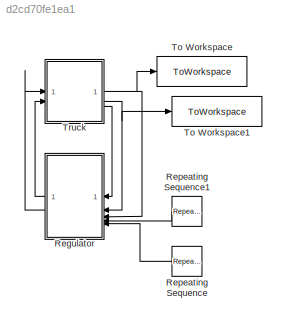
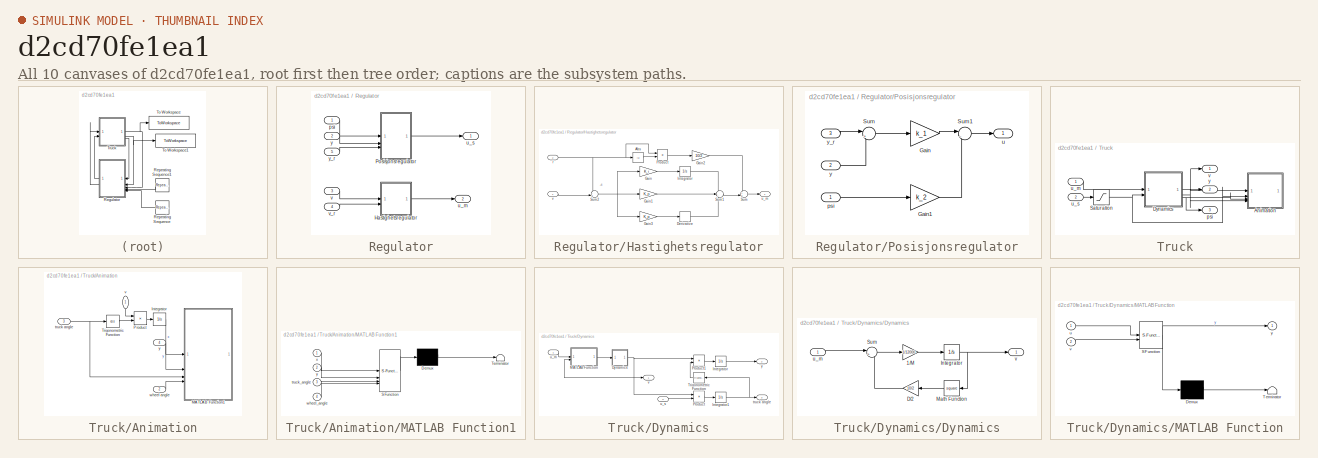
[diagram: thumbnail index - all 10 canvases of the model, root first then tree order]
MODEL slx_d2cd70fe1ea1
KIND model
CONFIG AbsTol = auto
CONFIG EnableMultiTasking = off
CONFIG FixedStep = auto
CONFIG MaxStep = 0.01
CONFIG MinStep = auto
CONFIG RelTol = 1e-3
CONFIG SampleTimeConstraint = Unconstrained
CONFIG SolverName = VariableStepAuto
CONFIG StartTime = 0.0
CONFIG StopTime = 80
BLOCK [SubSystem] Regulator
  NameLocation = top
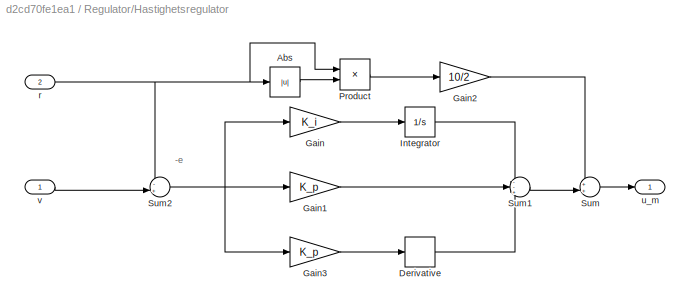
BLOCK [SubSystem] Regulator/Hastighetsregulator
BLOCK [Abs] Regulator/Hastighetsregulator/Abs
  SaturateOnIntegerOverflow = off
BLOCK [Derivative] Regulator/Hastighetsregulator/Derivative
BLOCK [Gain] Regulator/Hastighetsregulator/Gain
  Gain = K_i
BLOCK [Gain] Regulator/Hastighetsregulator/Gain1
  Gain = K_p
BLOCK [Gain] Regulator/Hastighetsregulator/Gain2
  Gain = 10/2
BLOCK [Gain] Regulator/Hastighetsregulator/Gain3
  Gain = K_p
BLOCK [Integrator] Regulator/Hastighetsregulator/Integrator
BLOCK [Product] Regulator/Hastighetsregulator/Product
BLOCK [Sum] Regulator/Hastighetsregulator/Sum
  Inputs = ++|
BLOCK [Sum] Regulator/Hastighetsregulator/Sum1
  Inputs = --+
BLOCK [Sum] Regulator/Hastighetsregulator/Sum2
  Inputs = -+|
BLOCK [Inport] Regulator/Hastighetsregulator/r
  Port = 2
BLOCK [Outport] Regulator/Hastighetsregulator/u_m
BLOCK [Inport] Regulator/Hastighetsregulator/v
BLOCK [SubSystem] Regulator/Posisjonsregulator
BLOCK [Gain] Regulator/Posisjonsregulator/Gain
  Gain = k_1
BLOCK [Gain] Regulator/Posisjonsregulator/Gain1
  Gain = k_2
BLOCK [Sum] Regulator/Posisjonsregulator/Sum
  Inputs = |+-
BLOCK [Sum] Regulator/Posisjonsregulator/Sum1
  Inputs = |--
BLOCK [Inport] Regulator/Posisjonsregulator/psi
BLOCK [Outport] Regulator/Posisjonsregulator/u
BLOCK [Inport] Regulator/Posisjonsregulator/y
  Port = 2
BLOCK [Inport] Regulator/Posisjonsregulator/y_r
  Port = 3
BLOCK [Inport] Regulator/psi
BLOCK [Outport] Regulator/u_m
  Port = 2
BLOCK [Outport] Regulator/u_s
BLOCK [Inport] Regulator/v
  Port = 3
BLOCK [Inport] Regulator/v_r
  Port = 4
BLOCK [Inport] Regulator/y
  Port = 2
BLOCK [Inport] Regulator/y_r
  Port = 5
BLOCK [Reference] Repeating Sequence  REF=simulink/Sources/Repeating
Sequence
  NameLocation = top
  SourceBlock = simulink/Sources/Repeating\nSequence
  SourceType = Repeating table
BLOCK [Reference] Repeating Sequence1  REF=simulink/Sources/Repeating
Sequence
  NameLocation = top
  SourceBlock = simulink/Sources/Repeating\nSequence
  SourceType = Repeating table
BLOCK [ToWorkspace] To Workspace
  FixptAsFi = on
  MaxDataPoints = inf
  SampleTime = 0.1
  Save2DSignal = 2-D array (concatenate along first dimension)
  VariableName = v
BLOCK [ToWorkspace] To Workspace1
  FixptAsFi = on
  MaxDataPoints = inf
  SampleTime = 0.1
  Save2DSignal = 2-D array (concatenate along first dimension)
  VariableName = y
BLOCK [SubSystem] Truck
BLOCK [SubSystem] Truck/Animation
BLOCK [Integrator] Truck/Animation/Integrator
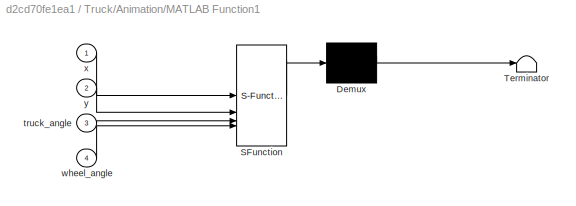
BLOCK [SubSystem] Truck/Animation/MATLAB Function1
  ErrorFcn = Stateflow.Translate.translate
  PermitHierarchicalResolution = ExplicitOnly
  SFBlockType = MATLAB Function
  SystemSampleTime = 1/30
  TreatAsAtomicUnit = on
BLOCK [Demux] Truck/Animation/MATLAB Function1/ Demux 
  Outputs = 1
BLOCK [S-Function] Truck/Animation/MATLAB Function1/ SFunction 
  EnableBusSupport = on
  FunctionName = sf_sfun
  PortCounts = [4 1]
  SFcnIsStateOwnerBlock = off
  SFunctionDeploymentMode = off
  Tag = Stateflow S-Function 3
BLOCK [Terminator] Truck/Animation/MATLAB Function1/ Terminator 
BLOCK [Inport] Truck/Animation/MATLAB Function1/truck_angle
  Port = 3
BLOCK [Inport] Truck/Animation/MATLAB Function1/wheel_angle
  Port = 4
BLOCK [Inport] Truck/Animation/MATLAB Function1/x
BLOCK [Inport] Truck/Animation/MATLAB Function1/y
  Port = 2
BLOCK [Product] Truck/Animation/Product
BLOCK [Trigonometry] Truck/Animation/Trigonometric Function
  Operator = cos
BLOCK [Inport] Truck/Animation/truck angle
  Port = 3
BLOCK [Inport] Truck/Animation/v
  NameLocation = left
BLOCK [Inport] Truck/Animation/wheel angle
  Port = 2
BLOCK [Inport] Truck/Animation/y
  Port = 4
BLOCK [SubSystem] Truck/Dynamics
  ClipboardFcn = parameters_truck.m
BLOCK [SubSystem] Truck/Dynamics/Dynamics
  ClipboardFcn = parameters_truck.m
BLOCK [Gain] Truck/Dynamics/Dynamics/1//M
  Gain = 1/12000
BLOCK [Gain] Truck/Dynamics/Dynamics/D//2
  Gain = 10/2
  NameLocation = top
BLOCK [Integrator] Truck/Dynamics/Dynamics/Integrator
BLOCK [Math] Truck/Dynamics/Dynamics/Math Function
  NameLocation = top
  Operator = square
  SignedPower = on
BLOCK [Sum] Truck/Dynamics/Dynamics/Sum
  Inputs = |+-
BLOCK [Inport] Truck/Dynamics/Dynamics/u_m
BLOCK [Outport] Truck/Dynamics/Dynamics/v
BLOCK [Integrator] Truck/Dynamics/Integrator
  InitialCondition = -2
BLOCK [Integrator] Truck/Dynamics/Integrator1
BLOCK [SubSystem] Truck/Dynamics/MATLAB Function
  ErrorFcn = Stateflow.Translate.translate
  PermitHierarchicalResolution = ExplicitOnly
  SFBlockType = MATLAB Function
  TreatAsAtomicUnit = on
BLOCK [Demux] Truck/Dynamics/MATLAB Function/ Demux 
  Outputs = 1
BLOCK [S-Function] Truck/Dynamics/MATLAB Function/ SFunction 
  EnableBusSupport = on
  FunctionName = sf_sfun
  PortCounts = [2 2]
  SFcnIsStateOwnerBlock = off
  SFunctionDeploymentMode = off
  Tag = Stateflow S-Function 1
BLOCK [Terminator] Truck/Dynamics/MATLAB Function/ Terminator 
BLOCK [Inport] Truck/Dynamics/MATLAB Function/u
BLOCK [Inport] Truck/Dynamics/MATLAB Function/v
  Port = 2
BLOCK [Outport] Truck/Dynamics/MATLAB Function/y
BLOCK [Product] Truck/Dynamics/Product
BLOCK [Product] Truck/Dynamics/Product1
BLOCK [Trigonometry] Truck/Dynamics/Trigonometric Function
  NameLocation = top
BLOCK [Outport] Truck/Dynamics/truck angle
  Port = 3
BLOCK [Inport] Truck/Dynamics/u_m
BLOCK [Inport] Truck/Dynamics/u_s
  Port = 2
BLOCK [Outport] Truck/Dynamics/v
BLOCK [Outport] Truck/Dynamics/y
  Port = 2
BLOCK [Saturate] Truck/Saturation
  LowerLimit = -pi/4
  UpperLimit = pi/4
BLOCK [Outport] Truck/psi
  Port = 3
BLOCK [Inport] Truck/u_m
BLOCK [Inport] Truck/u_s
  Port = 2
BLOCK [Outport] Truck/v
BLOCK [Outport] Truck/y
  Port = 2
ANNOTATION Regulator/Hastighetsregulator: -e
LINE Regulator/Hastighetsregulator/Abs:1 -> Regulator/Hastighetsregulator/Product:2
LINE Regulator/Hastighetsregulator/Derivative:1 -> Regulator/Hastighetsregulator/Sum1:3
LINE Regulator/Hastighetsregulator/Gain1:1 -> Regulator/Hastighetsregulator/Sum1:2
LINE Regulator/Hastighetsregulator/Gain2:1 -> Regulator/Hastighetsregulator/Sum:1
LINE Regulator/Hastighetsregulator/Gain3:1 -> Regulator/Hastighetsregulator/Derivative:1
LINE Regulator/Hastighetsregulator/Gain:1 -> Regulator/Hastighetsregulator/Integrator:1
LINE Regulator/Hastighetsregulator/Integrator:1 -> Regulator/Hastighetsregulator/Sum1:1
LINE Regulator/Hastighetsregulator/Product:1 -> Regulator/Hastighetsregulator/Gain2:1
LINE Regulator/Hastighetsregulator/Sum1:1 -> Regulator/Hastighetsregulator/Sum:2
NET Regulator/Hastighetsregulator/Sum2:1 -> Regulator/Hastighetsregulator/Gain1:1, Regulator/Hastighetsregulator/Gain3:1, Regulator/Hastighetsregulator/Gain:1
LINE Regulator/Hastighetsregulator/Sum:1 -> Regulator/Hastighetsregulator/u_m:1
NET Regulator/Hastighetsregulator/r:1 -> Regulator/Hastighetsregulator/Abs:1, Regulator/Hastighetsregulator/Product:1, Regulator/Hastighetsregulator/Sum2:1
LINE Regulator/Hastighetsregulator/v:1 -> Regulator/Hastighetsregulator/Sum2:2
LINE Regulator/Hastighetsregulator:1 -> Regulator/u_m:1
LINE Regulator/Posisjonsregulator/Gain1:1 -> Regulator/Posisjonsregulator/Sum1:2
LINE Regulator/Posisjonsregulator/Gain:1 -> Regulator/Posisjonsregulator/Sum1:1
LINE Regulator/Posisjonsregulator/Sum1:1 -> Regulator/Posisjonsregulator/u:1
LINE Regulator/Posisjonsregulator/Sum:1 -> Regulator/Posisjonsregulator/Gain:1
LINE Regulator/Posisjonsregulator/psi:1 -> Regulator/Posisjonsregulator/Gain1:1
LINE Regulator/Posisjonsregulator/y:1 -> Regulator/Posisjonsregulator/Sum:2
LINE Regulator/Posisjonsregulator/y_r:1 -> Regulator/Posisjonsregulator/Sum:1
LINE Regulator/Posisjonsregulator:1 -> Regulator/u_s:1
LINE Regulator/psi:1 -> Regulator/Posisjonsregulator:1
LINE Regulator/v:1 -> Regulator/Hastighetsregulator:1
LINE Regulator/v_r:1 -> Regulator/Hastighetsregulator:2
LINE Regulator/y:1 -> Regulator/Posisjonsregulator:2
LINE Regulator/y_r:1 -> Regulator/Posisjonsregulator:3
LINE Regulator:1 -> Truck:2
LINE Regulator:2 -> Truck:1
LINE Repeating Sequence1:1 -> Regulator:4
LINE Repeating Sequence:1 -> Regulator:5
LINE Truck/Animation/Integrator:1 -> Truck/Animation/MATLAB Function1:1
LINE Truck/Animation/Product:1 -> Truck/Animation/Integrator:1
LINE Truck/Animation/Trigonometric Function:1 -> Truck/Animation/Product:2
NET Truck/Animation/truck angle:1 -> Truck/Animation/MATLAB Function1:3, Truck/Animation/Trigonometric Function:1
LINE Truck/Animation/v:1 -> Truck/Animation/Product:1
LINE Truck/Animation/wheel angle:1 -> Truck/Animation/MATLAB Function1:4
LINE Truck/Animation/y:1 -> Truck/Animation/MATLAB Function1:2
LINE Truck/Dynamics/Dynamics/1//M:1 -> Truck/Dynamics/Dynamics/Integrator:1
LINE Truck/Dynamics/Dynamics/D//2:1 -> Truck/Dynamics/Dynamics/Sum:2
NET Truck/Dynamics/Dynamics/Integrator:1 -> Truck/Dynamics/Dynamics/Math Function:1, Truck/Dynamics/Dynamics/v:1
LINE Truck/Dynamics/Dynamics/Math Function:1 -> Truck/Dynamics/Dynamics/D//2:1
LINE Truck/Dynamics/Dynamics/Sum:1 -> Truck/Dynamics/Dynamics/1//M:1
LINE Truck/Dynamics/Dynamics/u_m:1 -> Truck/Dynamics/Dynamics/Sum:1
NET Truck/Dynamics/Dynamics:1 -> Truck/Dynamics/MATLAB Function:2, Truck/Dynamics/Product1:1, Truck/Dynamics/Product:1, Truck/Dynamics/v:1
NET Truck/Dynamics/Integrator1:1 -> Truck/Dynamics/Trigonometric Function:1, Truck/Dynamics/truck angle:1
LINE Truck/Dynamics/Integrator:1 -> Truck/Dynamics/y:1
LINE Truck/Dynamics/MATLAB Function:1 -> Truck/Dynamics/Dynamics:1
LINE Truck/Dynamics/Product1:1 -> Truck/Dynamics/Integrator:1
LINE Truck/Dynamics/Product:1 -> Truck/Dynamics/Integrator1:1
LINE Truck/Dynamics/Trigonometric Function:1 -> Truck/Dynamics/Product1:2
LINE Truck/Dynamics/u_m:1 -> Truck/Dynamics/MATLAB Function:1
LINE Truck/Dynamics/u_s:1 -> Truck/Dynamics/Product:2
NET Truck/Dynamics:1 -> Truck/Animation:1, Truck/v:1
NET Truck/Dynamics:2 -> Truck/Animation:4, Truck/y:1
NET Truck/Dynamics:3 -> Truck/Animation:3, Truck/psi:1
NET Truck/Saturation:1 -> Truck/Animation:2, Truck/Dynamics:2
LINE Truck/u_m:1 -> Truck/Dynamics:1
LINE Truck/u_s:1 -> Truck/Saturation:1
NET Truck:1 -> Regulator:3, To Workspace:1
NET Truck:2 -> Regulator:2, To Workspace1:1
LINE Truck:3 -> Regulator:1
note: NET lines group one-source signal fan-out (src -> all destinations, sorted); 1:1 wires keep LINE
CHART Truck/Dynamics/MATLAB Function states=1 transitions=1
  STATE_LABEL 'eML_blk_kernel()'
  STATE_LABEL 'SCRIPT:\nfunction y = saturation(u,v)\n    Pmax = 400000;\n    epsilon = 0.1;\n    \n    sat = Pmax/sqrt(v^2+epsilon);\n    y = max(min(u,sat),-sat);\n'
CHART Truck/Animation/MATLAB Function1 states=1 transitions=1
  STATE_LABEL 'eML_blk_kernel()'
  STATE_LABEL "SCRIPT:\nfunction plot_truck(x,y,truck_angle,wheel_angle)\n    % Parameters\n    l = 8;\n    persistent Truck;\n\n    % Plotting Truck\n    if isempty(Truck)\n        Truck = initialize_plot();\n    else\n        update_truck_position(Truck,x,y,truck_angle,wheel_angle);\n    end    \n\n    drawnow;\n\n    % Functions\n    function Truck = initialize_plot()\n        % Create figure\n        figure('position',[100,10...<+2388ch>"
CHART  states=0 transitions=0
CHART  states=0 transitions=0
